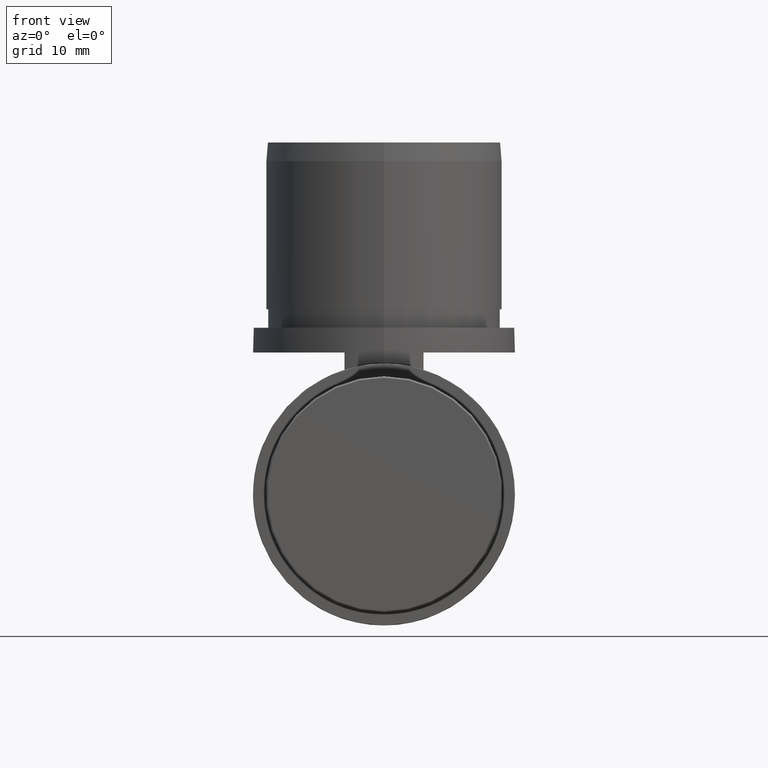
[diagram: clean part render]
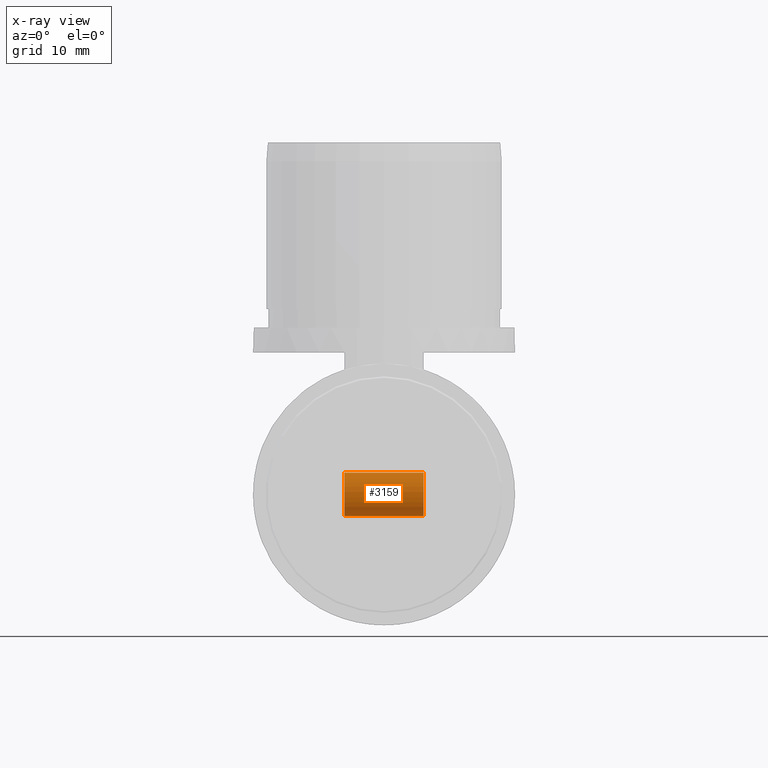
[diagram: x-ray — body ghosted, one internal face saturated and labeled with its STEP entity id]
A machine part, front view, then the same camera in x-ray: the body is ghosted and one INTERNAL B-rep face — a face not visible from any outside direction — is saturated and labeled: STEP entity #3159.
In plain terms, the highlighted cylindrical surface (edge-blend (fillet) strip) has radius 3.5 mm, axis along (-1, -0, -0).
Its self-contained STEP definition (entity closure, byte-faithful):
#10 = DIRECTION ( 'NONE',  ( 0.0000000000000000000, -1.000000000000000000, 0.0000000000000000000 ) ) ;
#200 = VECTOR ( 'NONE', #1875, 1000.000000000000000 ) ;
#234 = VERTEX_POINT ( 'NONE', #2792 ) ;
#257 = EDGE_CURVE ( 'NONE', #234, #5373, #3685, .T. ) ;
#355 = LINE ( 'NONE', #5117, #200 ) ;
#556 = EDGE_LOOP ( 'NONE', ( #3851, #1037, #4712, #2538 ) ) ;
#644 = DIRECTION ( 'NONE',  ( -1.000000000000000000, 0.0000000000000000000, -2.556032960213595003E-22 ) ) ;
#815 = LINE ( 'NONE', #5612, #4434 ) ;
#1026 = CARTESIAN_POINT ( 'NONE',  ( -6.400000000000000355, 57.00088815465589676, 2.475009545215704590E-15 ) ) ;
#1037 = ORIENTED_EDGE ( 'NONE', *, *, #3367, .T. ) ;
#1149 = CIRCLE ( 'NONE', #1284, 3.500000000000003109 ) ;
#1168 = FACE_OUTER_BOUND ( 'NONE', #556, .T. ) ;
#1198 = AXIS2_PLACEMENT_3D ( 'NONE', #5348, #644, #3538 ) ;
#1284 = AXIS2_PLACEMENT_3D ( 'NONE', #1026, #5684, #2892 ) ;
#1874 = CARTESIAN_POINT ( 'NONE',  ( 6.400000000000000355, 57.00088815465589676, 2.475012816937895037E-15 ) ) ;
#1875 = DIRECTION ( 'NONE',  ( -1.000000000000000000, 5.585768859275798920E-17, -2.556032960213595003E-22 ) ) ;
#1901 = DIRECTION ( 'NONE',  ( -1.000000000000000000, 0.0000000000000000000, -2.556032958918984989E-22 ) ) ;
#2538 = ORIENTED_EDGE ( 'NONE', *, *, #4668, .F. ) ;
#2560 = VERTEX_POINT ( 'NONE', #5698 ) ;
#2736 = DIRECTION ( 'NONE',  ( -1.000000000000000000, 5.585768859275798920E-17, -2.556032960213595003E-22 ) ) ;
#2792 = CARTESIAN_POINT ( 'NONE',  ( 6.400000000000000355, 60.50088815465599623, 2.903637560778375001E-15 ) ) ;
#2892 = DIRECTION ( 'NONE',  ( 0.0000000000000000000, -1.000000000000000000, 0.0000000000000000000 ) ) ;
#3159 = ADVANCED_FACE ( 'NONE', ( #1168 ), #4650, .F. ) ;
#3367 = EDGE_CURVE ( 'NONE', #234, #2560, #355, .T. ) ;
#3538 = DIRECTION ( 'NONE',  ( 0.0000000000000000000, -1.000000000000000000, 0.0000000000000000000 ) ) ;
#3685 = CIRCLE ( 'NONE', #5361, 3.500000000000003109 ) ;
#3851 = ORIENTED_EDGE ( 'NONE', *, *, #257, .F. ) ;
#4434 = VECTOR ( 'NONE', #2736, 1000.000000000000000 ) ;
#4650 = CYLINDRICAL_SURFACE ( 'NONE', #1198, 3.500000000000003109 ) ;
#4668 = EDGE_CURVE ( 'NONE', #5373, #4840, #815, .T. ) ;
#4712 = ORIENTED_EDGE ( 'NONE', *, *, #5911, .T. ) ;
#4840 = VERTEX_POINT ( 'NONE', #5218 ) ;
#5117 = CARTESIAN_POINT ( 'NONE',  ( 12.59999999999999964, 60.50088815465599623, 2.903640781379904922E-15 ) ) ;
#5218 = CARTESIAN_POINT ( 'NONE',  ( -6.400000000000000355, 53.50088815465589676, 2.475009545215704590E-15 ) ) ;
#5348 = CARTESIAN_POINT ( 'NONE',  ( 12.59999999999999964, 57.00088815465589676, 2.475014401678329931E-15 ) ) ;
#5361 = AXIS2_PLACEMENT_3D ( 'NONE', #1874, #1901, #10 ) ;
#5373 = VERTEX_POINT ( 'NONE', #5793 ) ;
#5612 = CARTESIAN_POINT ( 'NONE',  ( 12.59999999999999964, 53.50088815465589676, 2.475014401678329931E-15 ) ) ;
#5684 = DIRECTION ( 'NONE',  ( -1.000000000000000000, 0.0000000000000000000, -2.556032960213595003E-22 ) ) ;
#5698 = CARTESIAN_POINT ( 'NONE',  ( -6.400000000000000355, 60.50088815465599623, 2.903637560778375001E-15 ) ) ;
#5793 = CARTESIAN_POINT ( 'NONE',  ( 6.400000000000000355, 53.50088815465589676, 2.475012816937895037E-15 ) ) ;
#5911 = EDGE_CURVE ( 'NONE', #2560, #4840, #1149, .T. ) ;